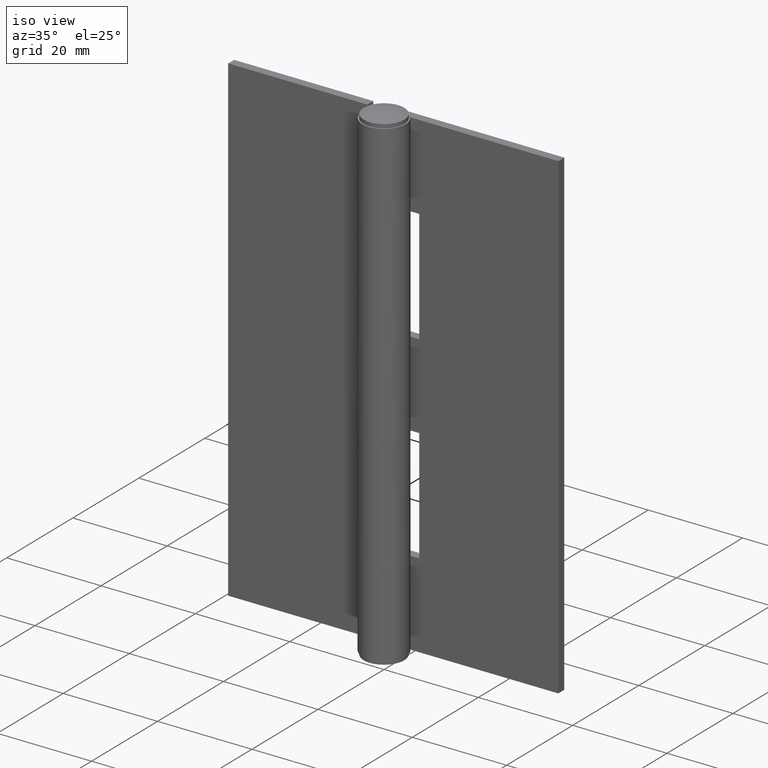
[diagram: clean part render]
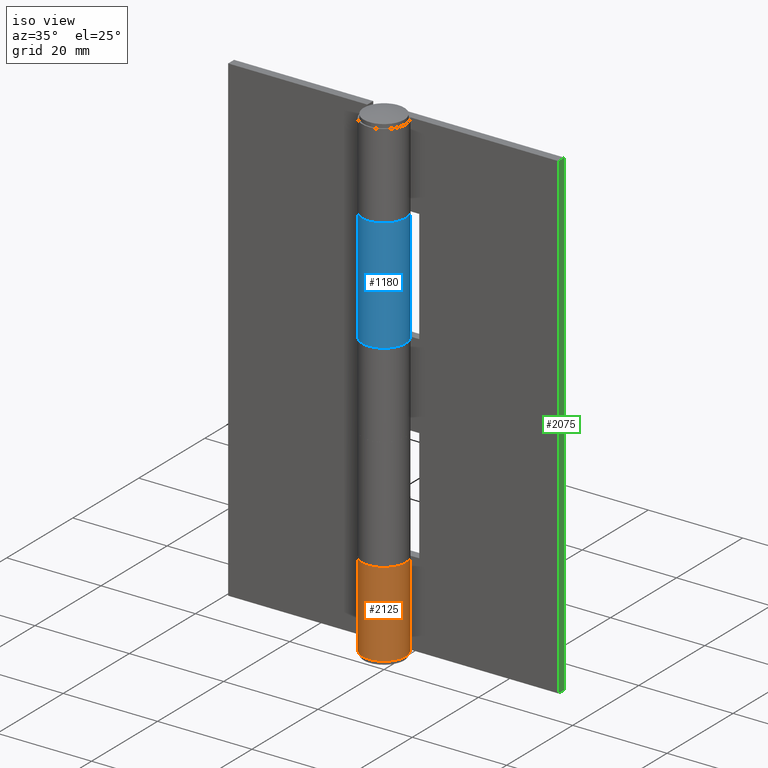
[diagram: same view with three faces highlighted in distinct colors, each labeled with its STEP entity id]
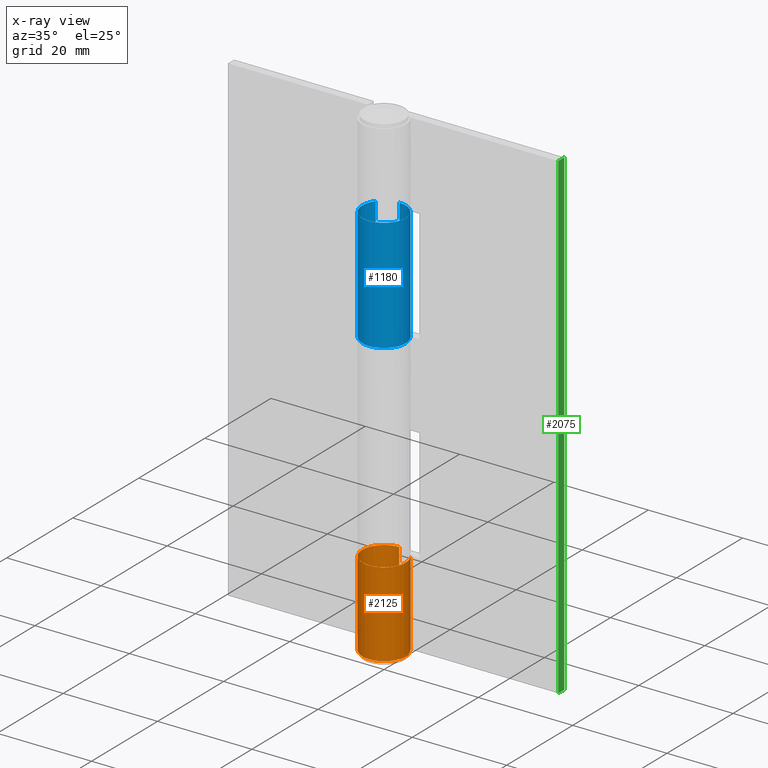
[diagram: x-ray of the same camera — body ghosted, the three highlighted faces saturated]
A machine part, iso view with three faces highlighted in distinct colors.
The next image is the same camera in x-ray (body ghosted, the three faces saturated) — at least one of them is partly hidden behind the body in this view.
Their STEP definitions:

[orange] entity #2125 — the highlighted face is a freeform B-spline surface patch.
#1828=CARTESIAN_POINT('',(3.687480305031595,2.749998000000000,18.0));
#1829=VERTEX_POINT('',#1828);
#1844=CARTESIAN_POINT('',(0.004289521635677,4.599998000000000,18.0));
#1845=VERTEX_POINT('',#1844);
#1851=CARTESIAN_POINT('',(0.0,4.599998000000000,18.0));
#1852=VERTEX_POINT('',#1851);
#1853=CARTESIAN_POINT('',(0.0,4.599998000000000,18.0));
#1854=CARTESIAN_POINT('',(0.004289521635677,4.599998000000000,18.0));
#1855=QUASI_UNIFORM_CURVE('',1,(#1853,#1854),.UNSPECIFIED.,.F.,.U.);
#1856=EDGE_CURVE('',#1852,#1845,#1855,.T.);
#1858=CARTESIAN_POINT('',(3.687480305031595,2.749998000000000,18.0));
#1859=CARTESIAN_POINT('',(4.004072522906082,2.326100336687350,18.000000000000011));
#1860=CARTESIAN_POINT('',(4.422117876123352,1.498225291821254,18.000000000000028));
#1861=CARTESIAN_POINT('',(4.619172424513152,0.351648548292736,17.999999999999961));
#1862=CARTESIAN_POINT('',(4.584627230898419,-0.677013719304034,18.000000000000060));
#1863=CARTESIAN_POINT('',(4.359271549810108,-1.587309417934303,17.999999999999961));
#1864=CARTESIAN_POINT('',(3.902014999870354,-2.492910107965023,17.999999999999851));
#1865=CARTESIAN_POINT('',(3.244674877982244,-3.329453588045793,18.0));
#1866=CARTESIAN_POINT('',(2.395781747845523,-3.979839719064498,17.999999999999989));
#1867=CARTESIAN_POINT('',(1.510819218557521,-4.367667307294673,18.000000000000011));
#1868=CARTESIAN_POINT('',(0.684510698665507,-4.575158751265308,18.000000000000021));
#1869=CARTESIAN_POINT('',(-0.200807552979690,-4.631032622002786,18.000000000000011));
#1870=CARTESIAN_POINT('',(-1.156945452829306,-4.485183945748191,17.999999999999989));
#1871=CARTESIAN_POINT('',(-1.957470247605024,-4.188174274516934,18.0));
#1872=CARTESIAN_POINT('',(-2.749096478516584,-3.726822035089321,18.0));
#1873=CARTESIAN_POINT('',(-3.365124227590624,-3.179548435002310,18.000000000000011));
#1874=CARTESIAN_POINT('',(-3.871400651522348,-2.514769193760317,18.000000000000021));
#1875=CARTESIAN_POINT('',(-4.221254585857619,-1.881315720986100,18.000000000000249));
#1876=CARTESIAN_POINT('',(-4.541075661336450,-0.970059169543149,17.999999999998771));
#1877=CARTESIAN_POINT('',(-4.656645563593888,0.158318517167260,18.000000000003361));
#1878=CARTESIAN_POINT('',(-4.465102692979510,1.240982940445104,17.999999999998970));
#1879=CARTESIAN_POINT('',(-4.121545342484545,2.090776336915302,17.999999999999719));
#1880=CARTESIAN_POINT('',(-3.725266188805374,2.735131909238315,18.000000000000320));
#1881=CARTESIAN_POINT('',(-3.174717586968719,3.364569314313450,17.999999999999719));
#1882=CARTESIAN_POINT('',(-2.517251856859496,3.884529091322956,18.000000000000760));
#1883=CARTESIAN_POINT('',(-1.715991065280582,4.297335874575837,17.999999999997691));
#1884=CARTESIAN_POINT('',(-0.881711231700487,4.544006361805914,18.000000000006651));
#1885=CARTESIAN_POINT('',(-0.288562088957136,4.600029283307723,17.999999999991608));
#1886=CARTESIAN_POINT('',(0.0,4.599998000000000,18.0));
#1887=B_SPLINE_CURVE_WITH_KNOTS('',3,(#1858,#1859,#1860,#1861,#1862,#1863,#1864,#1865,#1866,#1867,#1868,#1869,#1870,#1871,#1872,#1873,#1874,#1875,#1876,#1877,#1878,#1879,#1880,#1881,#1882,#1883,#1884,#1885,#1886),.UNSPECIFIED.,.F.,.U.,(4,1,1,1,1,1,1,1,1,1,1,1,1,1,1,1,1,1,1,1,1,1,1,1,1,1,4),(0.000000589395249,1.587103490620422,2.741425251080003,3.462860513891965,4.665252555517252,5.530997080892014,6.492837696846529,7.839502884079398,8.705210705422923,9.378558353155095,10.388569565239330,11.350501516124851,12.264325138663651,12.937541952807511,14.091847350524430,14.717103610719960,15.438543139590641,16.256171037100700,17.602853190076299,18.805197115208060,19.526585367402419,20.344216547986310,21.065663551556462,22.027587636138929,22.845226040279311,23.759030989258651,24.624714492442120),.UNSPECIFIED.);
#1888=EDGE_CURVE('',#1829,#1852,#1887,.T.);
#1939=CARTESIAN_POINT('',(3.687480305031595,2.749998000000000,0.0));
#1940=VERTEX_POINT('',#1939);
#1941=CARTESIAN_POINT('',(0.004289521635677,4.599998000000000,0.0));
#1942=VERTEX_POINT('',#1941);
#1943=CARTESIAN_POINT('',(3.687480305031595,2.749998000000000,0.0));
#1944=CARTESIAN_POINT('',(3.946408351170357,2.403036892847787,0.0));
#1945=CARTESIAN_POINT('',(4.372973902390956,1.621097416268616,0.0));
#1946=CARTESIAN_POINT('',(4.618660226034157,0.480385437080323,0.0));
#1947=CARTESIAN_POINT('',(4.595956835384256,-0.485293421357314,0.0));
#1948=CARTESIAN_POINT('',(4.440627884903903,-1.290735004389296,0.0));
#1949=CARTESIAN_POINT('',(4.156326890515399,-2.027335298273850,0.0));
#1950=CARTESIAN_POINT('',(3.721929486234799,-2.742002032290409,0.0));
#1951=CARTESIAN_POINT('',(3.075265255184501,-3.481656867385746,0.0));
#1952=CARTESIAN_POINT('',(2.239334405612041,-4.067833491097938,0.0));
#1953=CARTESIAN_POINT('',(1.206220602119762,-4.476039755247407,0.0));
#1954=CARTESIAN_POINT('',(0.313065359010914,-4.621971947843751,0.0));
#1955=CARTESIAN_POINT('',(-0.635089002565362,-4.582124510607512,0.0));
#1956=CARTESIAN_POINT('',(-1.452292456684932,-4.395121273936370,0.0));
#1957=CARTESIAN_POINT('',(-2.261272261123624,-4.035377542163980,0.0));
#1958=CARTESIAN_POINT('',(-2.951796753181517,-3.561540838824901,0.0));
#1959=CARTESIAN_POINT('',(-3.521507242579150,-2.992938237022845,0.0));
#1960=CARTESIAN_POINT('',(-3.988169454032830,-2.337969770241578,0.0));
#1961=CARTESIAN_POINT('',(-4.349830401959873,-1.582587237402338,0.0));
#1962=CARTESIAN_POINT('',(-4.612248734640848,-0.568529268195365,0.0));
#1963=CARTESIAN_POINT('',(-4.619907515191739,0.484825169259314,0.0));
#1964=CARTESIAN_POINT('',(-4.359259711950026,1.581696709815559,0.0));
#1965=CARTESIAN_POINT('',(-3.864521268245413,2.599051308678006,0.0));
#1966=CARTESIAN_POINT('',(-3.123172514305722,3.436295787642273,0.0));
#1967=CARTESIAN_POINT('',(-2.331800825157614,3.990129145904787,0.0));
#1968=CARTESIAN_POINT('',(-1.619945008423293,4.328336048815997,0.0));
#1969=CARTESIAN_POINT('',(-0.845554812265815,4.547799005291376,0.0));
#1970=CARTESIAN_POINT('',(-0.284322965511579,4.600301794802186,0.0));
#1971=CARTESIAN_POINT('',(0.004289521635677,4.599998000000000,0.0));
#1972=B_SPLINE_CURVE_WITH_KNOTS('',3,(#1943,#1944,#1945,#1946,#1947,#1948,#1949,#1950,#1951,#1952,#1953,#1954,#1955,#1956,#1957,#1958,#1959,#1960,#1961,#1962,#1963,#1964,#1965,#1966,#1967,#1968,#1969,#1970,#1971),.UNSPECIFIED.,.F.,.U.,(4,1,1,1,1,1,1,1,1,1,1,1,1,1,1,1,1,1,1,1,1,1,1,1,1,1,4),(0.000000589635547,1.298758101045149,2.645694223840653,3.463464063026464,4.185037711534825,5.099018593452019,5.820531930531505,6.686356769649361,8.033276200482820,8.851050258715567,10.005555086813789,10.727124969857559,11.689214112332831,12.506865659416400,13.372737881914460,14.190511580224740,14.912084333048639,15.777967450905390,16.691957004423049,18.038854766442181,18.904656407973690,20.059141803390521,21.406069302685260,22.223842520570351,22.945414732155790,23.763171998534329,24.629006349111648),.UNSPECIFIED.);
#1973=EDGE_CURVE('',#1940,#1942,#1972,.T.);
#2083=CARTESIAN_POINT('',(3.687480305031595,2.749998000000000,18.0));
#2084=CARTESIAN_POINT('',(3.687480305031595,2.749998000000000,0.0));
#2085=QUASI_UNIFORM_CURVE('',1,(#2083,#2084),.UNSPECIFIED.,.F.,.U.);
#2086=EDGE_CURVE('',#1829,#1940,#2085,.T.);
#2092=CARTESIAN_POINT('',(0.124701961586072,4.598309408986805,18.449999999999999));
#2093=CARTESIAN_POINT('',(0.124701961586072,4.598309408986805,-0.461250000000000));
#2094=CARTESIAN_POINT('',(-5.725707409654532,4.756967180742968,18.449999999999999));
#2095=CARTESIAN_POINT('',(-5.725707409654532,4.756967180742968,-0.461250000000000));
#2096=CARTESIAN_POINT('',(-4.497579982073100,-0.965284571955505,18.449999999999999));
#2097=CARTESIAN_POINT('',(-4.497579982073100,-0.965284571955505,-0.461250000000000));
#2098=CARTESIAN_POINT('',(-3.269452554491668,-6.687536324653976,18.449999999999999));
#2099=CARTESIAN_POINT('',(-3.269452554491668,-6.687536324653976,-0.461250000000000));
#2100=CARTESIAN_POINT('',(2.000610404051229,-4.142168274129139,18.449999999999999));
#2101=CARTESIAN_POINT('',(2.000610404051229,-4.142168274129139,-0.461250000000000));
#2102=CARTESIAN_POINT('',(7.270673362594124,-1.596800223604301,18.449999999999999));
#2103=CARTESIAN_POINT('',(7.270673362594124,-1.596800223604301,-0.461250000000000));
#2104=CARTESIAN_POINT('',(3.552200011622225,2.922648640776214,18.449999999999999));
#2105=CARTESIAN_POINT('',(3.552200011622225,2.922648640776214,-0.461250000000000));
#2113=(BOUNDED_SURFACE()B_SPLINE_SURFACE(1,2,((#2092,#2094,#2096,#2098,#2100,#2102,#2104),(#2093,#2095,#2097,#2099,#2101,#2103,#2105)),.UNSPECIFIED.,.F.,.F.,.U.)B_SPLINE_SURFACE_WITH_KNOTS((2,2),(3,2,2,3),(0.0,18.911249999999999),(0.0,8.941175215442145,17.882350430884291,26.823525646326441),.UNSPECIFIED.)GEOMETRIC_REPRESENTATION_ITEM()RATIONAL_B_SPLINE_SURFACE(((1.0,0.617951097721073,1.0,0.617951097721073,1.0,0.617951097721073,1.0),(1.0,0.617951097721073,1.0,0.617951097721073,1.0,0.617951097721073,1.0)))REPRESENTATION_ITEM('')SURFACE());
#2114=ORIENTED_EDGE('',*,*,#1888,.T.);
#2115=ORIENTED_EDGE('',*,*,#1856,.T.);
#2116=CARTESIAN_POINT('',(0.004289521635677,4.599998000000000,18.0));
#2117=CARTESIAN_POINT('',(0.004289521635677,4.599998000000000,0.0));
#2118=QUASI_UNIFORM_CURVE('',1,(#2116,#2117),.UNSPECIFIED.,.F.,.U.);
#2119=EDGE_CURVE('',#1845,#1942,#2118,.T.);
#2120=ORIENTED_EDGE('',*,*,#2119,.T.);
#2121=ORIENTED_EDGE('',*,*,#1973,.F.);
#2122=ORIENTED_EDGE('',*,*,#2086,.F.);
#2123=EDGE_LOOP('',(#2114,#2115,#2120,#2121,#2122));
#2124=FACE_OUTER_BOUND('',#2123,.T.);
#2125=ADVANCED_FACE('',(#2124),#2113,.T.);

[blue] entity #1180 — the highlighted face is a freeform B-spline surface patch.
#559=CARTESIAN_POINT('',(-3.687480305031595,2.749998000000000,84.0));
#560=VERTEX_POINT('',#559);
#566=CARTESIAN_POINT('',(0.004289521635677,4.599998000000000,84.0));
#567=VERTEX_POINT('',#566);
#568=CARTESIAN_POINT('',(0.004289521635677,4.599998000000000,84.0));
#569=CARTESIAN_POINT('',(0.276776082015266,4.599763779229614,84.000000000000043));
#570=CARTESIAN_POINT('',(0.885822889516134,4.544927240407300,84.000000000000199));
#571=CARTESIAN_POINT('',(1.689707609970882,4.306453050236945,83.999999999999574));
#572=CARTESIAN_POINT('',(2.534594035673543,3.875870576721697,84.000000000000654));
#573=CARTESIAN_POINT('',(3.205738358757780,3.344218058453455,83.999999999998451));
#574=CARTESIAN_POINT('',(3.804317704179181,2.629089317702588,84.000000000002899));
#575=CARTESIAN_POINT('',(4.164020172810208,1.999792719644687,83.999999999998352));
#576=CARTESIAN_POINT('',(4.437276749959308,1.279220698894599,84.000000000001378));
#577=CARTESIAN_POINT('',(4.599076742353951,0.523575628803083,83.999999999999019));
#578=CARTESIAN_POINT('',(4.612586647147984,-0.249481515627821,84.000000000001421));
#579=CARTESIAN_POINT('',(4.503370551588083,-1.028598865163953,83.999999999997215));
#580=CARTESIAN_POINT('',(4.291826193732860,-1.721900238597273,84.000000000003965));
#581=CARTESIAN_POINT('',(3.837117522966144,-2.609067190287799,84.000000000002387));
#582=CARTESIAN_POINT('',(3.191114583949873,-3.378214566127076,83.999999999988333));
#583=CARTESIAN_POINT('',(2.381998112603557,-3.963693959175837,84.000000000018844));
#584=CARTESIAN_POINT('',(1.599801139530320,-4.340464881838613,83.999999999986613));
#585=CARTESIAN_POINT('',(0.791232399429702,-4.560691415281853,84.000000000005258));
#586=CARTESIAN_POINT('',(-0.252065338702056,-4.636622793988989,83.999999999997101));
#587=CARTESIAN_POINT('',(-1.211271008003200,-4.479244241722005,84.000000000003183));
#588=CARTESIAN_POINT('',(-2.104435397968622,-4.114543466020568,83.999999999995680));
#589=CARTESIAN_POINT('',(-2.897912795918261,-3.623097585530558,84.000000000016129));
#590=CARTESIAN_POINT('',(-3.599822791605004,-2.929537059926959,83.999999999994898));
#591=CARTESIAN_POINT('',(-4.105357449153127,-2.125345956042647,84.000000000000853));
#592=CARTESIAN_POINT('',(-4.477457759832945,-1.217840511574460,84.000000000001620));
#593=CARTESIAN_POINT('',(-4.636256429712876,-0.258865556077851,83.999999999994557));
#594=CARTESIAN_POINT('',(-4.565249278482106,0.736381344767768,84.000000000007248));
#595=CARTESIAN_POINT('',(-4.315689454813820,1.719001734440952,83.999999999990962));
#596=CARTESIAN_POINT('',(-3.965575678647308,2.377492274382376,84.000000000012733));
#597=CARTESIAN_POINT('',(-3.687480305031595,2.749998000000000,84.0));
#598=B_SPLINE_CURVE_WITH_KNOTS('',3,(#568,#569,#570,#571,#572,#573,#574,#575,#576,#577,#578,#579,#580,#581,#582,#583,#584,#585,#586,#587,#588,#589,#590,#591,#592,#593,#594,#595,#596,#597),.UNSPECIFIED.,.F.,.U.,(4,1,1,1,1,1,1,1,1,1,1,1,1,1,1,1,1,1,1,1,1,1,1,1,1,1,1,4),(0.000000588718720,0.817465578239698,1.827291249430296,2.500500466211793,3.654606450081992,4.375928628731970,5.289572372471103,5.818504781357138,6.684027734041184,7.597671885176716,8.126649830390253,9.040313791473583,9.761618612987698,11.108062199447030,12.021754798896570,12.742965326081100,13.704711258802369,14.522195729239010,15.868646530043099,16.589967917717448,17.407456730311171,18.657615087846789,19.523185702838219,20.244499865939758,21.590961170760998,22.408446703848391,23.225931173438781,24.620427187376489),.UNSPECIFIED.);
#599=EDGE_CURVE('',#567,#560,#598,.T.);
#761=CARTESIAN_POINT('',(0.004289521635677,4.599998000000000,60.0));
#762=VERTEX_POINT('',#761);
#763=CARTESIAN_POINT('',(-3.687480305031595,2.749998000000000,60.0));
#764=VERTEX_POINT('',#763);
#765=CARTESIAN_POINT('',(0.004289521635677,4.599998000000000,60.0));
#766=CARTESIAN_POINT('',(0.276776070102348,4.599763752245520,59.999999999999957));
#767=CARTESIAN_POINT('',(0.885814864474450,4.544913224834716,60.000000000000121));
#768=CARTESIAN_POINT('',(1.890746917543023,4.246937262013832,59.999999999999787));
#769=CARTESIAN_POINT('',(2.863174153181048,3.664997473422246,60.000000000000227));
#770=CARTESIAN_POINT('',(3.585919134875719,2.927391193806540,59.999999999999922));
#771=CARTESIAN_POINT('',(4.080847710499065,2.175237028531512,59.999999999999638));
#772=CARTESIAN_POINT('',(4.410340067459902,1.405170199212264,60.000000000000981));
#773=CARTESIAN_POINT('',(4.599068868248897,0.523572828707805,59.999999999999218));
#774=CARTESIAN_POINT('',(4.612589452444115,-0.249481342434969,60.000000000001009));
#775=CARTESIAN_POINT('',(4.503368018867155,-1.028597238248047,59.999999999997890));
#776=CARTESIAN_POINT('',(4.282455065573893,-1.752738214694141,60.000000000004484));
#777=CARTESIAN_POINT('',(3.877874621230759,-2.521812984699577,59.999999999996952));
#778=CARTESIAN_POINT('',(3.310026147727984,-3.242760355976526,60.000000000000028));
#779=CARTESIAN_POINT('',(2.603371185030321,-3.831334666134518,60.000000000003659));
#780=CARTESIAN_POINT('',(1.666621744370516,-4.331903722732982,59.999999999991317));
#781=CARTESIAN_POINT('',(0.649947910070127,-4.603150756682894,60.000000000003332));
#782=CARTESIAN_POINT('',(-0.365970078599527,-4.612975536584712,60.000000000000313));
#783=CARTESIAN_POINT('',(-1.141308949206908,-4.473169320265721,59.999999999998380));
#784=CARTESIAN_POINT('',(-1.856957395627660,-4.232277262950760,59.999999999998288));
#785=CARTESIAN_POINT('',(-2.666297865454693,-3.798662903519384,60.000000000014097));
#786=CARTESIAN_POINT('',(-3.442810688696680,-3.114948517234948,59.999999999996632));
#787=CARTESIAN_POINT('',(-3.962432582311714,-2.377009662887736,60.000000000001442));
#788=CARTESIAN_POINT('',(-4.326809620645885,-1.625849126570715,59.999999999999332));
#789=CARTESIAN_POINT('',(-4.539447541091975,-0.898392044443418,60.000000000000263));
#790=CARTESIAN_POINT('',(-4.621250468394902,-0.050159713754031,59.999999999999893));
#791=CARTESIAN_POINT('',(-4.565265837814946,0.736373833891826,59.999999999999382));
#792=CARTESIAN_POINT('',(-4.315706804255367,1.719011512456346,60.000000000003588));
#793=CARTESIAN_POINT('',(-3.965559066929849,2.377483233940804,59.999999999993143));
#794=CARTESIAN_POINT('',(-3.687480305031595,2.749998000000000,60.0));
#795=B_SPLINE_CURVE_WITH_KNOTS('',3,(#765,#766,#767,#768,#769,#770,#771,#772,#773,#774,#775,#776,#777,#778,#779,#780,#781,#782,#783,#784,#785,#786,#787,#788,#789,#790,#791,#792,#793,#794),.UNSPECIFIED.,.F.,.U.,(4,1,1,1,1,1,1,1,1,1,1,1,1,1,1,1,1,1,1,1,1,1,1,1,1,1,1,4),(0.000000588718720,0.817465578239698,1.827291249430296,3.125643630687129,4.183580028114150,4.904898240637280,5.818504781357138,6.684027734041184,7.597671885176716,8.126649830390253,9.040313791473583,9.857793737895488,10.723388294164319,11.781310937666490,12.598675292681570,13.897048562929079,14.906889933185740,15.628204649508890,16.253340733015520,17.166989555694961,18.369181515997489,19.330854031381921,19.859817230058290,20.869647257625100,21.590961170760998,22.408446703848391,23.225931173438781,24.620427187376489),.UNSPECIFIED.);
#796=EDGE_CURVE('',#762,#764,#795,.T.);
#1137=CARTESIAN_POINT('',(-3.687480305031595,2.749998000000000,84.0));
#1138=CARTESIAN_POINT('',(-3.687480305031595,2.749998000000000,60.0));
#1139=QUASI_UNIFORM_CURVE('',1,(#1137,#1138),.UNSPECIFIED.,.F.,.U.);
#1140=EDGE_CURVE('',#560,#764,#1139,.T.);
#1148=CARTESIAN_POINT('',(-3.597325666302419,2.866923098124860,84.600000000000009));
#1149=CARTESIAN_POINT('',(-3.597325666302419,2.866923098124860,59.384999999999991));
#1150=CARTESIAN_POINT('',(-7.288903981166822,-1.765154207999233,84.599999999999994));
#1151=CARTESIAN_POINT('',(-7.288903981166822,-1.765154207999233,59.384999999999998));
#1152=CARTESIAN_POINT('',(-1.887117409326238,-4.195090926716347,84.600000000000009));
#1153=CARTESIAN_POINT('',(-1.887117409326238,-4.195090926716347,59.384999999999991));
#1154=CARTESIAN_POINT('',(3.514669162514344,-6.625027645433463,84.599999999999994));
#1155=CARTESIAN_POINT('',(3.514669162514344,-6.625027645433463,59.384999999999998));
#1156=CARTESIAN_POINT('',(4.531685509178148,-0.789826845520443,84.600000000000009));
#1157=CARTESIAN_POINT('',(4.531685509178148,-0.789826845520443,59.384999999999991));
#1158=CARTESIAN_POINT('',(5.548701855841953,5.045373954392576,84.599999999999994));
#1159=CARTESIAN_POINT('',(5.548701855841953,5.045373954392576,59.384999999999998));
#1160=CARTESIAN_POINT('',(-0.356635384957861,4.586154293326375,84.600000000000009));
#1161=CARTESIAN_POINT('',(-0.356635384957861,4.586154293326375,59.384999999999991));
#1169=(BOUNDED_SURFACE()B_SPLINE_SURFACE(1,2,((#1148,#1150,#1152,#1154,#1156,#1158,#1160),(#1149,#1151,#1153,#1155,#1157,#1159,#1161)),.UNSPECIFIED.,.F.,.F.,.U.)B_SPLINE_SURFACE_WITH_KNOTS((2,2),(3,2,2,3),(0.0,25.215000000000021),(0.0,9.007431044261569,18.014862088523142,27.022293132784711),.UNSPECIFIED.)GEOMETRIC_REPRESENTATION_ITEM()RATIONAL_B_SPLINE_SURFACE(((1.0,0.613366643455859,1.0,0.613366643455859,1.0,0.613366643455859,1.0),(1.0,0.613366643455859,1.0,0.613366643455859,1.0,0.613366643455859,1.0)))REPRESENTATION_ITEM('')SURFACE());
#1170=CARTESIAN_POINT('',(0.004289521635677,4.599998000000000,84.0));
#1171=CARTESIAN_POINT('',(0.004289521635677,4.599998000000000,60.0));
#1172=QUASI_UNIFORM_CURVE('',1,(#1170,#1171),.UNSPECIFIED.,.F.,.U.);
#1173=EDGE_CURVE('',#567,#762,#1172,.T.);
#1174=ORIENTED_EDGE('',*,*,#1173,.F.);
#1175=ORIENTED_EDGE('',*,*,#599,.T.);
#1176=ORIENTED_EDGE('',*,*,#1140,.T.);
#1177=ORIENTED_EDGE('',*,*,#796,.F.);
#1178=EDGE_LOOP('',(#1174,#1175,#1176,#1177));
#1179=FACE_OUTER_BOUND('',#1178,.T.);
#1180=ADVANCED_FACE('',(#1179),#1169,.T.);

[green] entity #2075 — the highlighted face is a freeform B-spline surface patch.
#1578=CARTESIAN_POINT('',(34.999991999999999,2.799999000000000,0.0));
#1579=VERTEX_POINT('',#1578);
#1585=CARTESIAN_POINT('',(34.999991999999999,2.799999000000000,102.0));
#1586=VERTEX_POINT('',#1585);
#1587=CARTESIAN_POINT('',(34.999991999999999,2.799999000000000,102.0));
#1588=CARTESIAN_POINT('',(34.999991999999999,2.799999000000000,0.0));
#1589=QUASI_UNIFORM_CURVE('',1,(#1587,#1588),.UNSPECIFIED.,.F.,.U.);
#1590=EDGE_CURVE('',#1586,#1579,#1589,.T.);
#1975=CARTESIAN_POINT('',(34.999991999999999,4.599998000000000,0.0));
#1976=VERTEX_POINT('',#1975);
#1982=CARTESIAN_POINT('',(34.999991999999999,4.599998000000000,0.0));
#1983=CARTESIAN_POINT('',(34.999991999999999,2.799999000000000,0.0));
#1984=QUASI_UNIFORM_CURVE('',1,(#1982,#1983),.UNSPECIFIED.,.F.,.U.);
#1985=EDGE_CURVE('',#1976,#1579,#1984,.T.);
#2045=CARTESIAN_POINT('',(34.999991999999999,4.599998000000000,102.0));
#2046=VERTEX_POINT('',#2045);
#2047=CARTESIAN_POINT('',(34.999991999999999,4.599998000000000,102.0));
#2048=CARTESIAN_POINT('',(34.999991999999999,2.799999000000000,102.0));
#2049=QUASI_UNIFORM_CURVE('',1,(#2047,#2048),.UNSPECIFIED.,.F.,.U.);
#2050=EDGE_CURVE('',#2046,#1586,#2049,.T.);
#2060=CARTESIAN_POINT('',(34.999991999999999,2.710089053438747,107.094899802304200));
#2061=CARTESIAN_POINT('',(34.999991999999999,2.710089053438747,-5.094902538157399));
#2062=CARTESIAN_POINT('',(34.999991999999999,4.689907994840990,107.094899802304200));
#2063=CARTESIAN_POINT('',(34.999991999999999,4.689907994840990,-5.094902538157399));
#2064=B_SPLINE_SURFACE_WITH_KNOTS('',1,1,((#2060,#2062),(#2061,#2063)),.UNSPECIFIED.,.F.,.F.,.U.,(2,2),(2,2),(0.0,112.189802340461600),(0.0,1.979818941402243),.UNSPECIFIED.);
#2065=ORIENTED_EDGE('',*,*,#1985,.F.);
#2066=CARTESIAN_POINT('',(34.999991999999999,4.599998000000000,102.0));
#2067=CARTESIAN_POINT('',(34.999991999999999,4.599998000000000,0.0));
#2068=QUASI_UNIFORM_CURVE('',1,(#2066,#2067),.UNSPECIFIED.,.F.,.U.);
#2069=EDGE_CURVE('',#2046,#1976,#2068,.T.);
#2070=ORIENTED_EDGE('',*,*,#2069,.F.);
#2071=ORIENTED_EDGE('',*,*,#2050,.T.);
#2072=ORIENTED_EDGE('',*,*,#1590,.T.);
#2073=EDGE_LOOP('',(#2065,#2070,#2071,#2072));
#2074=FACE_OUTER_BOUND('',#2073,.T.);
#2075=ADVANCED_FACE('',(#2074),#2064,.T.);